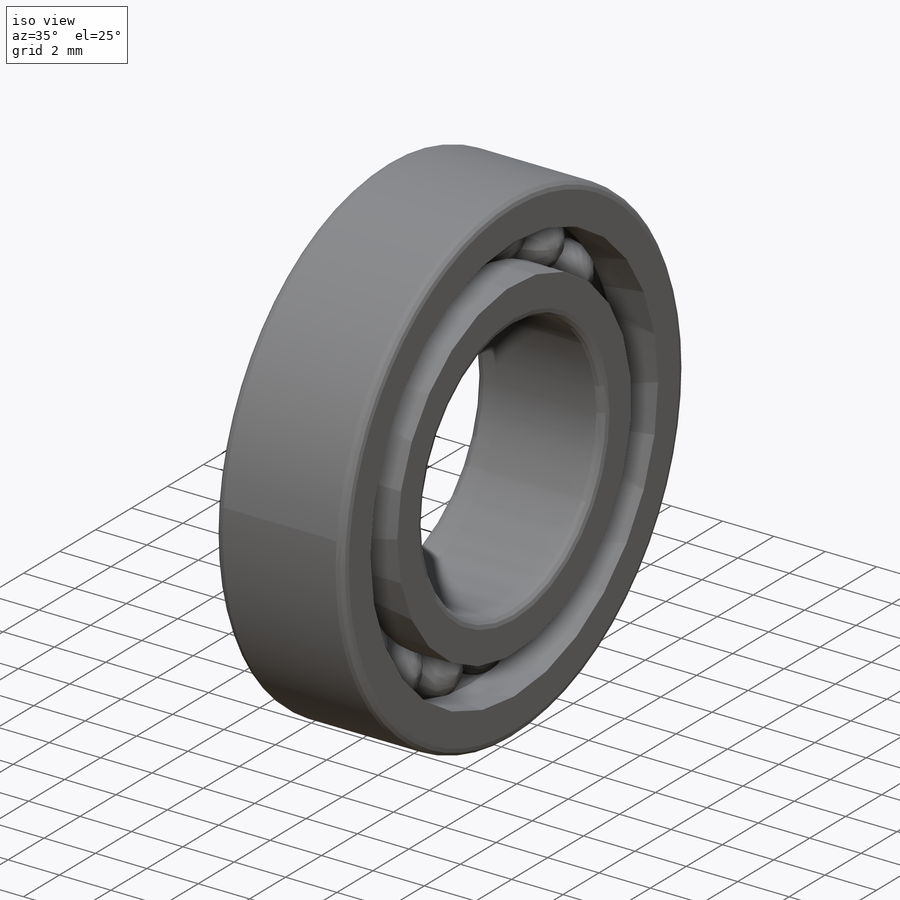
[diagram: iso view]
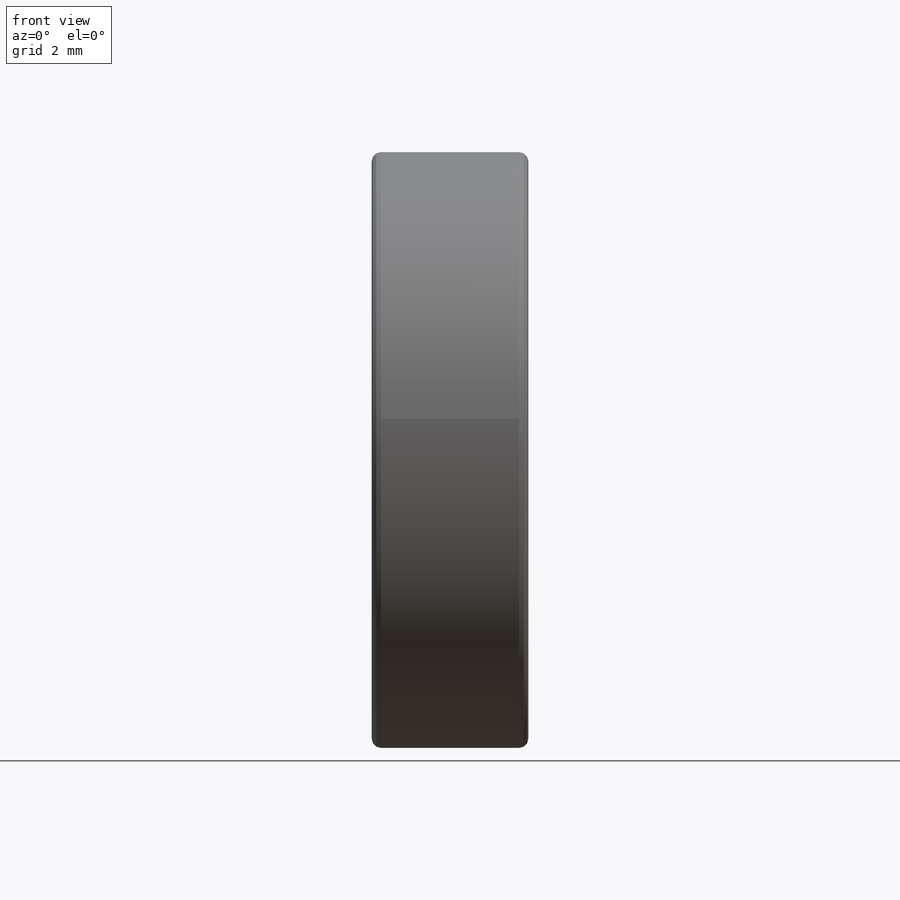
[diagram: front view]
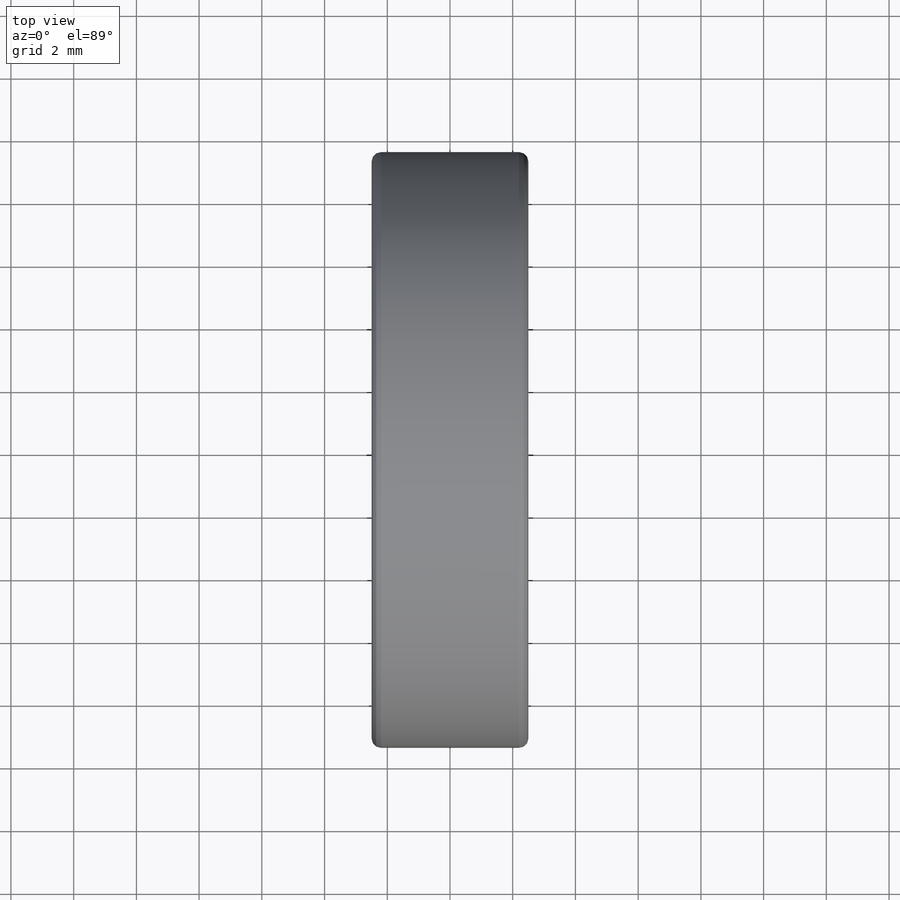
[diagram: top view]
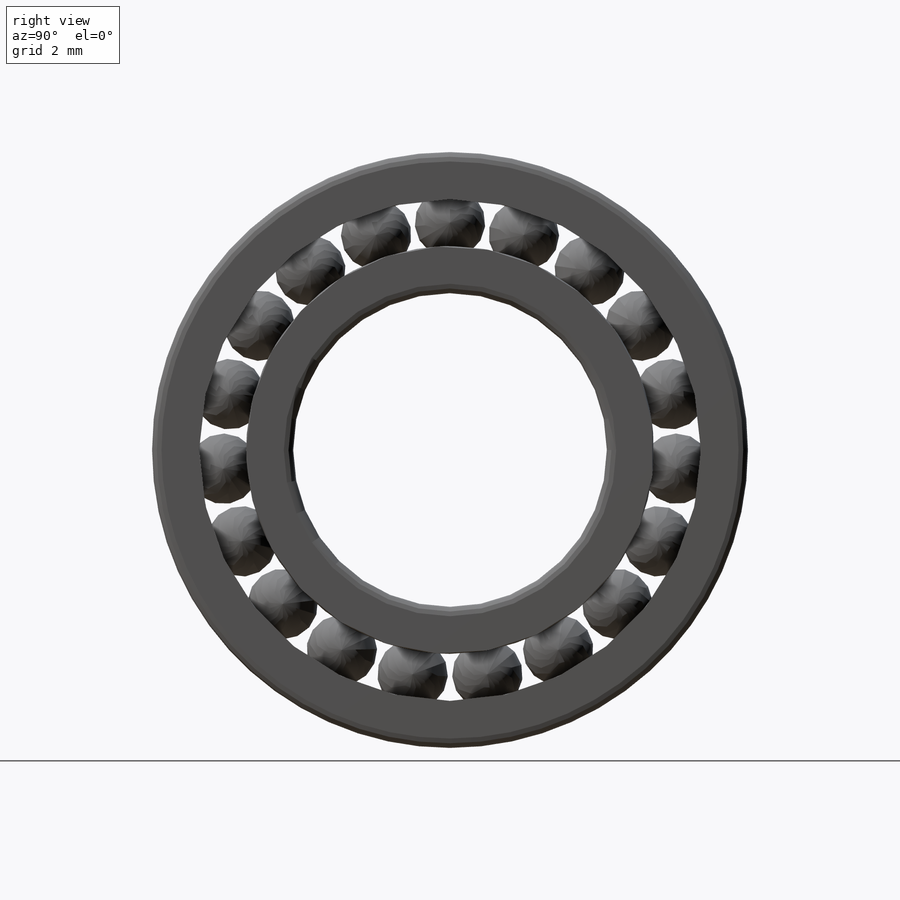
[diagram: right view]
SOLIDWORKS PART (.sldprt)
format: sldprt  version: not decoded by parser v0  size: 729,600 bytes
history: native  units: mm
features: sketch x3, revolve x3, material x1, pattern_circular x1, fillet x1 (+13 scaffold rows collapsed)
feature tree (22):
  scaffold x13  (default folders/planes/origin — collapsed)
  material  "材质 <未指定>"
  sketch  "Sketch1"  dims[dia=2.25mm d0=14.5mm]
  revolve  "Revolve1"  Angle=360deg
  sketch  "Sketch2"  dims[c1.D5=2.23mm c1.B=5.0mm c1.B/2=4.0mm c1.d=10.0mm c1.D3=7.25mm c1.D4=1.5mm c2.B/2=2.5mm]
  revolve  "Revolve2"  Angle=360deg
  sketch  "Sketch3"  dims[c1.DD=19.0mm c1.B=5.0mm c1.B/2=4.0mm c1.D4=7.25mm c1.D5=1.5mm c2.B/2=2.5mm]
  revolve  "Revolve3"  Angle=360deg
  pattern_circular  "Circular-Pattern1"  Count=19 Angle=360deg m=19
  fillet  "Fillet1"  Radius=0.3mm r=0.3mm
decode coverage: 8 of 8 modeling features carry decoded parameters
note: suppression state not decoded; provenance and decode notes live in map.json
